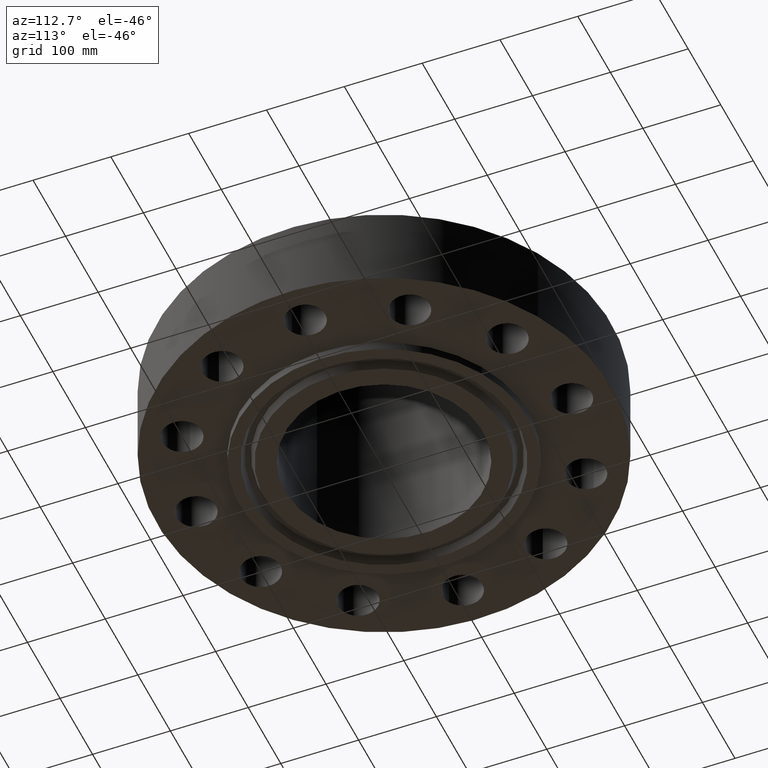
[diagram: clean part render]
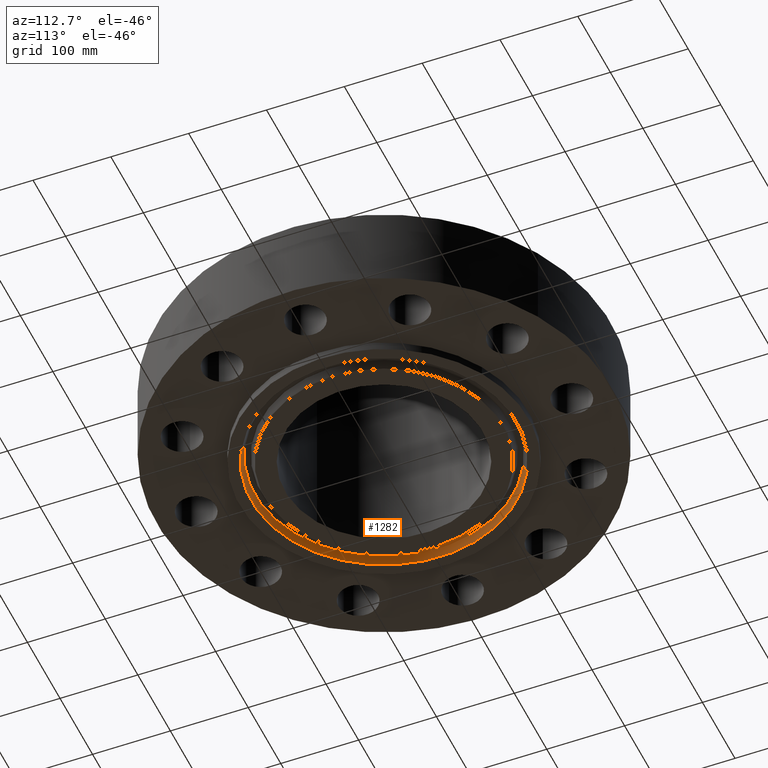
[diagram: same view with one face highlighted and labeled with its STEP entity id]
A machine part, auxiliary view. The second image highlights one B-rep face of the part: STEP entity #1282.
In plain terms, the highlighted conical surface has half-angle 23 deg.
Its self-contained STEP definition (entity closure, byte-faithful):
#1181=AXIS2_PLACEMENT_3D('Circle Axis2P3D',#1179,#1180,$) ;
#1228=AXIS2_PLACEMENT_3D('Circle Axis2P3D',#1226,#1227,$) ;
#1264=AXIS2_PLACEMENT_3D('Cone Axis2P3D',#1261,#1262,#1263) ;
#1179=CARTESIAN_POINT('Axis2P3D Location',(8.39223703654E-016,5.59482469102E-016,-0.438000000002)) ;
#1183=CARTESIAN_POINT('Vertex',(3.21358938528,-5.88243591237,-0.438000000002)) ;
#1185=CARTESIAN_POINT('Vertex',(-3.21358938528,5.88243591237,-0.438000000002)) ;
#1226=CARTESIAN_POINT('Axis2P3D Location',(0.,0.,-0.0383839389053)) ;
#1230=CARTESIAN_POINT('Vertex',(-3.13226589145,5.73357425544,-0.0383839389053)) ;
#1232=CARTESIAN_POINT('Vertex',(3.13226589145,-5.73357425544,-0.0383839389053)) ;
#1261=CARTESIAN_POINT('Axis2P3D Location',(0.,0.,-0.0383839389053)) ;
#1266=CARTESIAN_POINT('Line Origine',(-3.17292763836,5.80800508391,-0.238191969454)) ;
#1271=CARTESIAN_POINT('Line Origine',(3.17292763836,-5.80800508391,-0.238191969454)) ;
#1180=DIRECTION('Axis2P3D Direction',(0.,0.,-0.0393700787402)) ;
#1227=DIRECTION('Axis2P3D Direction',(0.,0.,0.0393700787402)) ;
#1262=DIRECTION('Axis2P3D Direction',(-0.,-0.,-0.0393700787402)) ;
#1263=DIRECTION('Axis2P3D XDirection',(-0.0188750212049,0.0345504945626,0.)) ;
#1267=DIRECTION('Vector Direction',(-0.00737505833565,0.0134999537303,-0.0362403485611)) ;
#1272=DIRECTION('Vector Direction',(0.00737505833565,-0.0134999537303,-0.0362403485611)) ;
#1268=VECTOR('Line Direction',#1267,0.0393700787402) ;
#1273=VECTOR('Line Direction',#1272,0.0393700787402) ;
#1277=ORIENTED_EDGE('',*,*,#1187,.T.) ;
#1278=ORIENTED_EDGE('',*,*,#1270,.T.) ;
#1279=ORIENTED_EDGE('',*,*,#1234,.T.) ;
#1280=ORIENTED_EDGE('',*,*,#1275,.F.) ;
#1282=ADVANCED_FACE('PartBody',(#1281),#1265,.F.) ;
#1182=CIRCLE('generated circle',#1181,6.70300000003) ;
#1229=CIRCLE('generated circle',#1228,6.53337304594) ;
#1265=CONICAL_SURFACE('Cone',#1264,6.53337304594,0.401425727959) ;
#1187=EDGE_CURVE('',#1184,#1186,#1182,.T.) ;
#1234=EDGE_CURVE('',#1231,#1233,#1229,.T.) ;
#1270=EDGE_CURVE('',#1186,#1231,#1269,.F.) ;
#1275=EDGE_CURVE('',#1184,#1233,#1274,.F.) ;
#1276=EDGE_LOOP('',(#1277,#1278,#1279,#1280)) ;
#1281=FACE_OUTER_BOUND('',#1276,.T.) ;
#1269=LINE('Line',#1266,#1268) ;
#1274=LINE('Line',#1271,#1273) ;
#1184=VERTEX_POINT('',#1183) ;
#1186=VERTEX_POINT('',#1185) ;
#1231=VERTEX_POINT('',#1230) ;
#1233=VERTEX_POINT('',#1232) ;